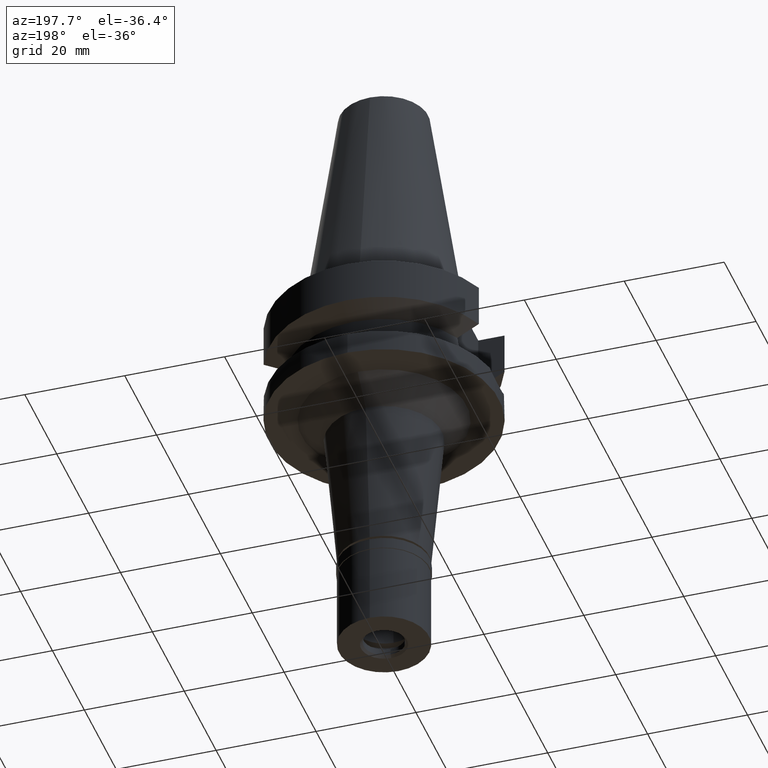
[diagram: clean part render]
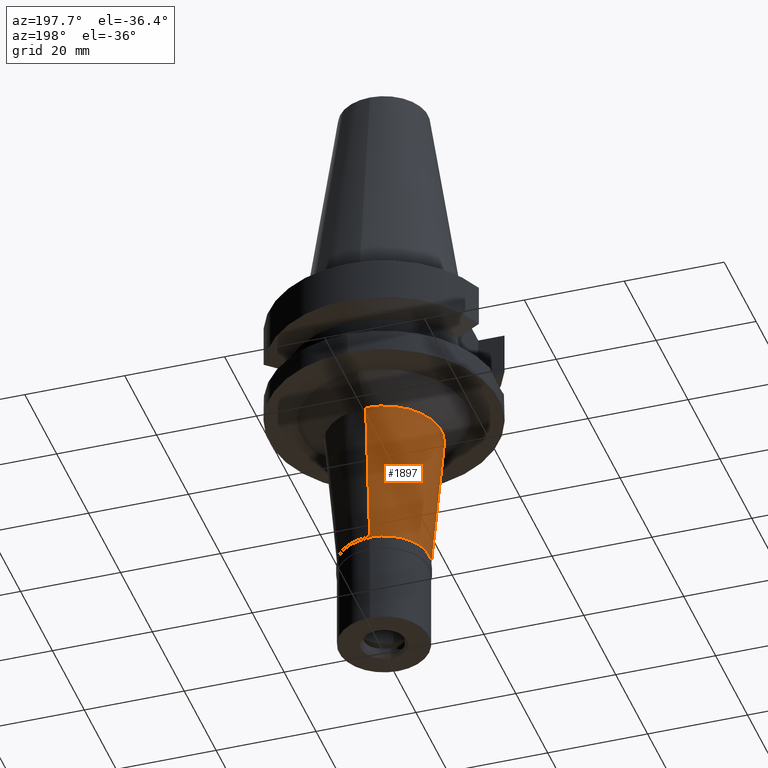
[diagram: same view with one face highlighted and labeled with its STEP entity id]
A machine part, auxiliary view. The second image highlights one B-rep face of the part: STEP entity #1897.
In plain terms, the highlighted conical surface has half-angle 5 deg.
Its self-contained STEP definition (entity closure, byte-faithful):
#47 = CARTESIAN_POINT ( 'NONE',  ( 0.0000000000000000000, -11.52842237589999819, -27.00000000000000000 ) ) ;
#84 = ORIENTED_EDGE ( 'NONE', *, *, #195, .T. ) ;
#195 = EDGE_CURVE ( 'NONE', #210, #461, #2461, .T. ) ;
#210 = VERTEX_POINT ( 'NONE', #546 ) ;
#303 = DIRECTION ( 'NONE',  ( 0.0000000000000000000, -1.000000000000000000, 0.0000000000000000000 ) ) ;
#445 = ORIENTED_EDGE ( 'NONE', *, *, #1947, .F. ) ;
#461 = VERTEX_POINT ( 'NONE', #2774 ) ;
#469 = CARTESIAN_POINT ( 'NONE',  ( 0.0000000000000000000, 11.52842237589999819, -27.00000000000000000 ) ) ;
#546 = CARTESIAN_POINT ( 'NONE',  ( 0.0000000000000000000, -11.52842237589999819, -27.00000000000000000 ) ) ;
#900 = CONICAL_SURFACE ( 'NONE', #2514, 10.26421118794999998, 0.08726646259969973729 ) ;
#957 = VERTEX_POINT ( 'NONE', #2592 ) ;
#998 = VECTOR ( 'NONE', #2119, 1000.000000000000000 ) ;
#1169 = EDGE_CURVE ( 'NONE', #461, #957, #2543, .T. ) ;
#1296 = VERTEX_POINT ( 'NONE', #2526 ) ;
#1401 = DIRECTION ( 'NONE',  ( 0.0000000000000000000, 0.0000000000000000000, -1.000000000000000000 ) ) ;
#1426 = VECTOR ( 'NONE', #2723, 1000.000000000000000 ) ;
#1529 = ORIENTED_EDGE ( 'NONE', *, *, #1169, .T. ) ;
#1578 = DIRECTION ( 'NONE',  ( 0.0000000000000000000, 1.000000000000000000, 0.0000000000000000000 ) ) ;
#1596 = ORIENTED_EDGE ( 'NONE', *, *, #2338, .T. ) ;
#1789 = CARTESIAN_POINT ( 'NONE',  ( 0.0000000000000000000, 0.0000000000000000000, -55.89999999999999858 ) ) ;
#1847 = EDGE_LOOP ( 'NONE', ( #1596, #445, #84, #1529 ) ) ;
#1856 = AXIS2_PLACEMENT_3D ( 'NONE', #2764, #1401, #303 ) ;
#1897 = ADVANCED_FACE ( 'NONE', ( #2311 ), #900, .T. ) ;
#1947 = EDGE_CURVE ( 'NONE', #210, #1296, #2342, .T. ) ;
#2092 = DIRECTION ( 'NONE',  ( 0.0000000000000000000, 1.000000000000000000, 0.0000000000000000000 ) ) ;
#2119 = DIRECTION ( 'NONE',  ( 0.0000000000000000000, 0.08715574274767391716, -0.9961946980917442129 ) ) ;
#2290 = CIRCLE ( 'NONE', #2379, 9.000000000000000000 ) ;
#2311 = FACE_OUTER_BOUND ( 'NONE', #1847, .T. ) ;
#2338 = EDGE_CURVE ( 'NONE', #957, #1296, #2290, .T. ) ;
#2342 = LINE ( 'NONE', #47, #998 ) ;
#2379 = AXIS2_PLACEMENT_3D ( 'NONE', #1789, #2452, #1578 ) ;
#2452 = DIRECTION ( 'NONE',  ( 0.0000000000000000000, 0.0000000000000000000, 1.000000000000000000 ) ) ;
#2461 = CIRCLE ( 'NONE', #1856, 11.52842237589999819 ) ;
#2514 = AXIS2_PLACEMENT_3D ( 'NONE', #2591, #2558, #2092 ) ;
#2526 = CARTESIAN_POINT ( 'NONE',  ( 0.0000000000000000000, -9.000000000000000000, -55.89999999999999858 ) ) ;
#2543 = LINE ( 'NONE', #469, #1426 ) ;
#2558 = DIRECTION ( 'NONE',  ( 0.0000000000000000000, 0.0000000000000000000, 1.000000000000000000 ) ) ;
#2591 = CARTESIAN_POINT ( 'NONE',  ( 0.0000000000000000000, 0.0000000000000000000, -41.45000000000000284 ) ) ;
#2592 = CARTESIAN_POINT ( 'NONE',  ( 0.0000000000000000000, 9.000000000000000000, -55.89999999999999858 ) ) ;
#2723 = DIRECTION ( 'NONE',  ( 0.0000000000000000000, -0.08715574274767391716, -0.9961946980917442129 ) ) ;
#2764 = CARTESIAN_POINT ( 'NONE',  ( 0.0000000000000000000, 0.0000000000000000000, -27.00000000000000000 ) ) ;
#2774 = CARTESIAN_POINT ( 'NONE',  ( 0.0000000000000000000, 11.52842237589999819, -27.00000000000000000 ) ) ;